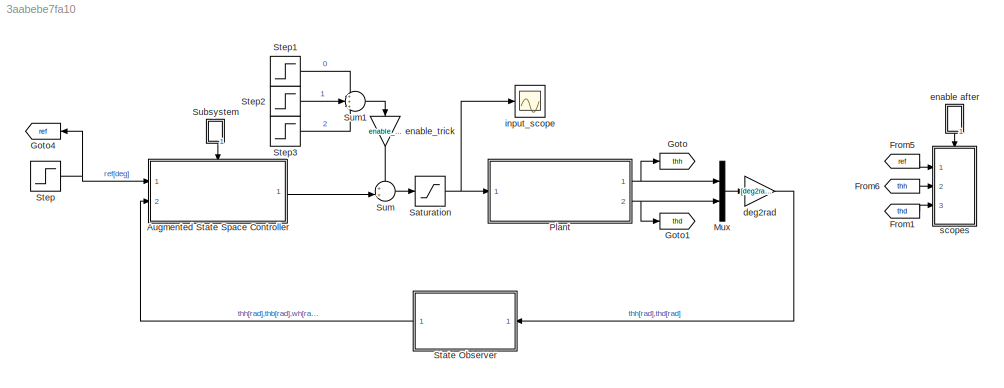
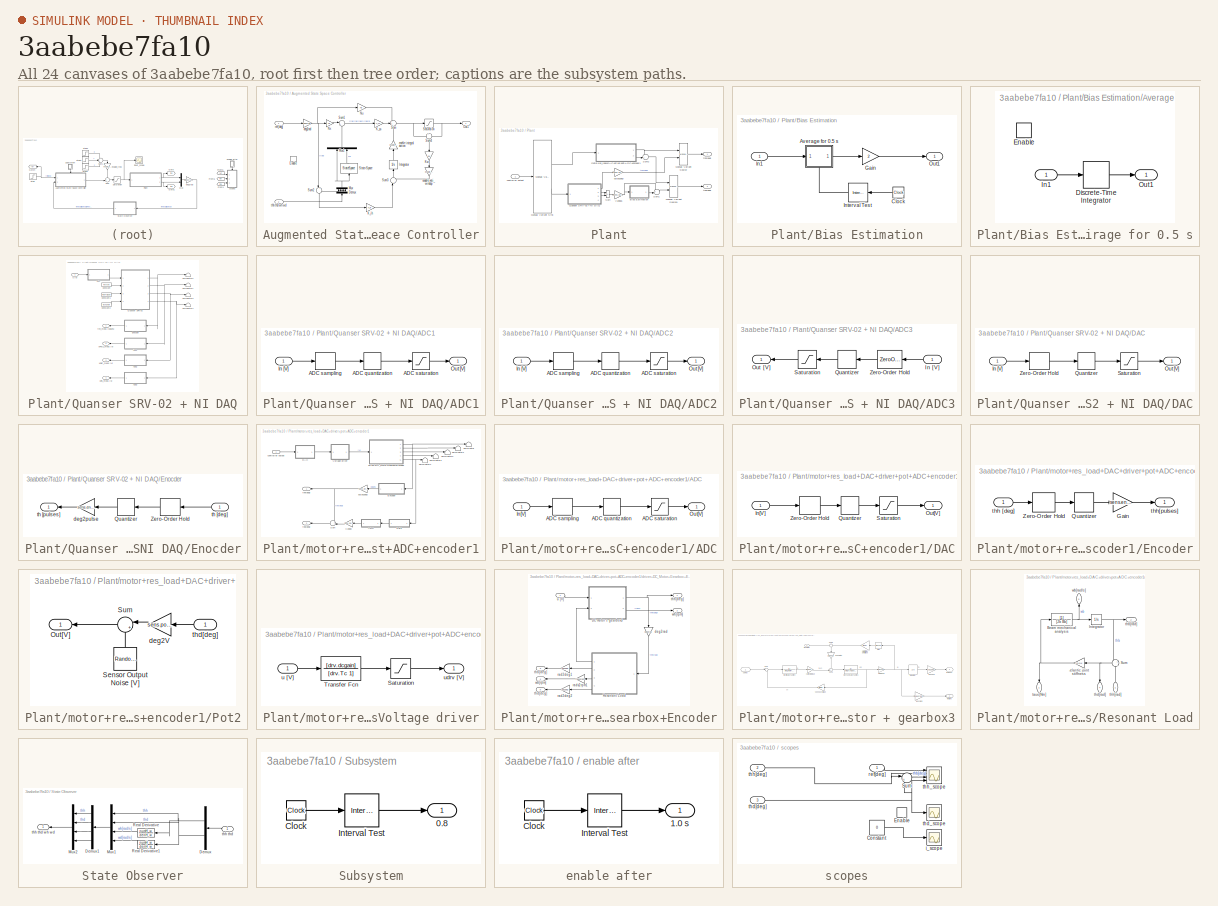
[diagram: thumbnail index - all 24 canvases of the model, root first then tree order]
MODEL slx_3aabebe7fa10
KIND model
CONFIG AbsTol = auto
CONFIG EnableMultiTasking = off
CONFIG FixedStep = auto
CONFIG MaxStep = auto
CONFIG MinStep = auto
CONFIG RelTol = 1e-3
CONFIG SampleTimeConstraint = Unconstrained
CONFIG SolverName = ode45
CONFIG StartTime = 0.0
CONFIG StopTime = 3
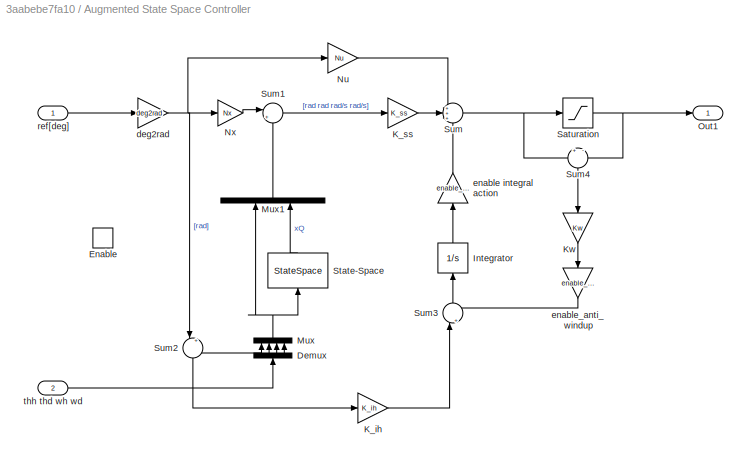
BLOCK [SubSystem] Augmented State Space Controller
  Ports = [2, 1, 1]
  RequestExecContextInheritance = off
BLOCK [Demux] Augmented State Space Controller/Demux
  NameLocation = right
  Ports = [1, 4]
BLOCK [EnablePort] Augmented State Space Controller/Enable
  Ports = []
BLOCK [Integrator] Augmented State Space Controller/Integrator
  NameLocation = right
  Ports = [1, 1]
BLOCK [Gain] Augmented State Space Controller/K_ih
  Gain = K_ih
BLOCK [Gain] Augmented State Space Controller/K_ss
  Gain = K_ss
  Multiplication = Matrix(K*u) (u vector)
BLOCK [Gain] Augmented State Space Controller/Kw
  Gain = Kw
  NameLocation = left
BLOCK [Mux] Augmented State Space Controller/Mux
  DisplayOption = bar
  NameLocation = right
  Ports = [4, 1]
BLOCK [Mux] Augmented State Space Controller/Mux1
  DisplayOption = bar
  Inputs = 2
  NameLocation = right
  Ports = [2, 1]
BLOCK [Gain] Augmented State Space Controller/Nu
  Gain = Nu
  Multiplication = Matrix(K*u) (u vector)
BLOCK [Gain] Augmented State Space Controller/Nx
  Gain = Nx
  Multiplication = Matrix(K*u) (u vector)
BLOCK [Outport] Augmented State Space Controller/Out1
BLOCK [Saturate] Augmented State Space Controller/Saturation
  LowerLimit = -10
  UpperLimit = 10
BLOCK [StateSpace] Augmented State Space Controller/State-Space
  A = Aq
  B = Bq
  C = eye(2,2)
  D = zeros(2,4)
  InitialCondition = 0
  NameLocation = right
  Ports = [1, 1]
BLOCK [Sum] Augmented State Space Controller/Sum
  Inputs = +++
  Ports = [3, 1]
BLOCK [Sum] Augmented State Space Controller/Sum1
  Inputs = |+-
  Ports = [2, 1]
BLOCK [Sum] Augmented State Space Controller/Sum2
  Inputs = |+-
  NameLocation = left
  Ports = [2, 1]
BLOCK [Sum] Augmented State Space Controller/Sum3
  Inputs = |+-
  NameLocation = right
  Ports = [2, 1]
BLOCK [Sum] Augmented State Space Controller/Sum4
  Inputs = +|-
  NameLocation = left
  Ports = [2, 1]
BLOCK [Gain] Augmented State Space Controller/deg2rad
  Gain = deg2rad
BLOCK [Gain] Augmented State Space Controller/enable integral action
  Gain = enable_integral_action
  NameLocation = right
BLOCK [Gain] Augmented State Space Controller/enable_anti_windup
  Gain = enable_anti_windup
  NameLocation = right
BLOCK [Inport] Augmented State Space Controller/ref[deg]
BLOCK [Inport] Augmented State Space Controller/thh thd wh wd
  NameLocation = top
  Port = 2
BLOCK [From] From1
  GotoTag = thd
BLOCK [From] From5
  GotoTag = ref
BLOCK [From] From6
  GotoTag = thh
BLOCK [Goto] Goto
  GotoTag = thh
BLOCK [Goto] Goto1
  GotoTag = thd
BLOCK [Goto] Goto4
  GotoTag = ref
  NameLocation = top
BLOCK [Mux] Mux
  DisplayOption = bar
  Inputs = 2
  Ports = [2, 1]
BLOCK [SubSystem] Plant
  Ports = [1, 2]
  RequestExecContextInheritance = off
BLOCK [SubSystem] Plant/Bias Estimation
  Ports = [1, 1]
  RequestExecContextInheritance = off
BLOCK [SubSystem] Plant/Bias Estimation/Average for 0.5 s
  NameLocation = top
  Ports = [1, 1, 1]
  RequestExecContextInheritance = off
BLOCK [DiscreteIntegrator] Plant/Bias Estimation/Average for 0.5 s/Discrete-Time Integrator
  ICPrevOutput = DiscIntNeverNeededParam
  ICPrevScaledInput = DiscIntNeverNeededParam
  InitialConditionSetting = Auto
  Ports = [1, 1]
  SampleTime = Ts
BLOCK [EnablePort] Plant/Bias Estimation/Average for 0.5 s/Enable
  Ports = []
BLOCK [Inport] Plant/Bias Estimation/Average for 0.5 s/In1
BLOCK [Outport] Plant/Bias Estimation/Average for 0.5 s/Out1
BLOCK [Clock] Plant/Bias Estimation/Clock
  NameLocation = top
BLOCK [Gain] Plant/Bias Estimation/Gain
  Gain = 2
BLOCK [Inport] Plant/Bias Estimation/In1
BLOCK [Reference] Plant/Bias Estimation/Interval Test  REF=simulink/Logic and Bit
Operations/Interval Test
  NameLocation = top
  Ports = [1, 1]
  SourceBlock = simulink/Logic and Bit\nOperations/Interval Test
  SourceProductBaseCode = SL
  SourceType = Interval Test
BLOCK [Outport] Plant/Bias Estimation/Out1
BLOCK [Reference] Plant/Manual Variant Sink  REF=simulink/Signal
Routing/Manual
Variant Sink
  Ports = [1, 2]
  SourceBlock = simulink/Signal\nRouting/Manual\nVariant Sink
  SourceProductBaseCode = SL
  SourceType = ManualVariantSink
BLOCK [Reference] Plant/Manual Variant Source  REF=simulink/Signal
Routing/Manual
Variant Source
  Ports = [2, 1]
  SourceBlock = simulink/Signal\nRouting/Manual\nVariant Source
  SourceProductBaseCode = SL
  SourceType = ManualVariantSource
BLOCK [Reference] Plant/Manual Variant Source1  REF=simulink/Signal
Routing/Manual
Variant Source
  Ports = [2, 1]
  SourceBlock = simulink/Signal\nRouting/Manual\nVariant Source
  SourceProductBaseCode = SL
  SourceType = ManualVariantSource
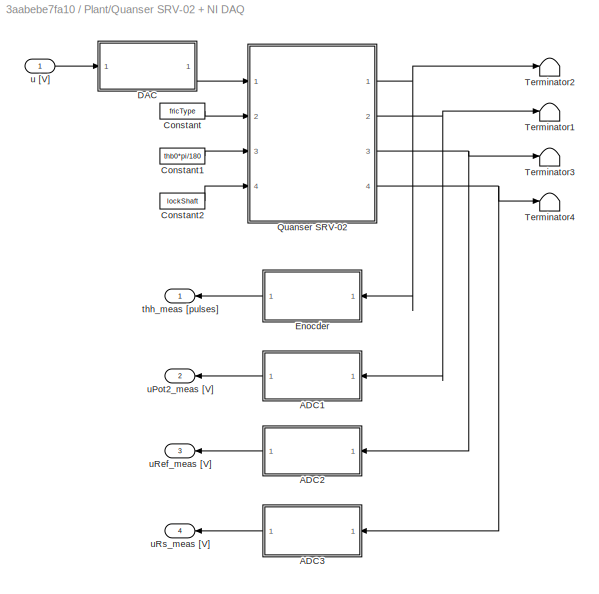
BLOCK [SubSystem] Plant/Quanser SRV-02 + NI DAQ
  Ports = [1, 4]
  RequestExecContextInheritance = off
BLOCK [SubSystem] Plant/Quanser SRV-02 + NI DAQ/ADC1
  Ports = [1, 1]
  RequestExecContextInheritance = off
BLOCK [Quantizer] Plant/Quanser SRV-02 + NI DAQ/ADC1/ADC quantization
  QuantizationInterval = daq.adc.q
BLOCK [ZeroOrderHold] Plant/Quanser SRV-02 + NI DAQ/ADC1/ADC sampling
  SampleTime = Ts
BLOCK [Saturate] Plant/Quanser SRV-02 + NI DAQ/ADC1/ADC saturation
  LowerLimit = -daq.adc.fs
  UpperLimit = daq.adc.fs
BLOCK [Inport] Plant/Quanser SRV-02 + NI DAQ/ADC1/In [V]
BLOCK [Outport] Plant/Quanser SRV-02 + NI DAQ/ADC1/Out [V]
BLOCK [SubSystem] Plant/Quanser SRV-02 + NI DAQ/ADC2
  Ports = [1, 1]
  RequestExecContextInheritance = off
BLOCK [Quantizer] Plant/Quanser SRV-02 + NI DAQ/ADC2/ADC quantization
  QuantizationInterval = daq.adc.q
BLOCK [ZeroOrderHold] Plant/Quanser SRV-02 + NI DAQ/ADC2/ADC sampling
  SampleTime = Ts
BLOCK [Saturate] Plant/Quanser SRV-02 + NI DAQ/ADC2/ADC saturation
  LowerLimit = -daq.adc.fs
  UpperLimit = daq.adc.fs
BLOCK [Inport] Plant/Quanser SRV-02 + NI DAQ/ADC2/In [V]
BLOCK [Outport] Plant/Quanser SRV-02 + NI DAQ/ADC2/Out [V]
BLOCK [SubSystem] Plant/Quanser SRV-02 + NI DAQ/ADC3
  Ports = [1, 1]
  RequestExecContextInheritance = off
BLOCK [Inport] Plant/Quanser SRV-02 + NI DAQ/ADC3/In [V]
BLOCK [Outport] Plant/Quanser SRV-02 + NI DAQ/ADC3/Out [V]
BLOCK [Quantizer] Plant/Quanser SRV-02 + NI DAQ/ADC3/Quantizer
  QuantizationInterval = daq.adc.q
BLOCK [Saturate] Plant/Quanser SRV-02 + NI DAQ/ADC3/Saturation
  LowerLimit = -daq.adc.fs
  UpperLimit = daq.adc.fs
BLOCK [ZeroOrderHold] Plant/Quanser SRV-02 + NI DAQ/ADC3/Zero-Order Hold
  SampleTime = Ts
BLOCK [Constant] Plant/Quanser SRV-02 + NI DAQ/Constant
  Value = fricType
BLOCK [Constant] Plant/Quanser SRV-02 + NI DAQ/Constant1
  SampleTime = Inf
  Value = thb0*pi/180
BLOCK [Constant] Plant/Quanser SRV-02 + NI DAQ/Constant2
  SampleTime = Inf
  Value = lockShaft
BLOCK [SubSystem] Plant/Quanser SRV-02 + NI DAQ/DAC
  Ports = [1, 1]
  RequestExecContextInheritance = off
BLOCK [Inport] Plant/Quanser SRV-02 + NI DAQ/DAC/In [V]
BLOCK [Outport] Plant/Quanser SRV-02 + NI DAQ/DAC/Out [V]
BLOCK [Quantizer] Plant/Quanser SRV-02 + NI DAQ/DAC/Quantizer
  QuantizationInterval = daq.dac.q
BLOCK [Saturate] Plant/Quanser SRV-02 + NI DAQ/DAC/Saturation
  LowerLimit = -daq.dac.fs
  UpperLimit = daq.dac.fs
BLOCK [ZeroOrderHold] Plant/Quanser SRV-02 + NI DAQ/DAC/Zero-Order Hold
  SampleTime = Ts
BLOCK [SubSystem] Plant/Quanser SRV-02 + NI DAQ/Enocder
  Ports = [1, 1]
  RequestExecContextInheritance = off
BLOCK [Quantizer] Plant/Quanser SRV-02 + NI DAQ/Enocder/Quantizer
  QuantizationInterval = sens.enc.pulse2deg
BLOCK [ZeroOrderHold] Plant/Quanser SRV-02 + NI DAQ/Enocder/Zero-Order Hold
  SampleTime = Ts
BLOCK [Gain] Plant/Quanser SRV-02 + NI DAQ/Enocder/deg2pulse
  Gain = sens.enc.deg2pulse
BLOCK [Inport] Plant/Quanser SRV-02 + NI DAQ/Enocder/th [deg]
BLOCK [Outport] Plant/Quanser SRV-02 + NI DAQ/Enocder/th [pulses]
BLOCK [ModelReference] Plant/Quanser SRV-02 + NI DAQ/Quanser SRV-02
  CopyOfModelProtected = on
  ModelNameDialog = SRV02RL_win64.slxp
  ModelReferenceVersion = 1.76
  Ports = [4, 4]
BLOCK [Terminator] Plant/Quanser SRV-02 + NI DAQ/Terminator1
BLOCK [Terminator] Plant/Quanser SRV-02 + NI DAQ/Terminator2
BLOCK [Terminator] Plant/Quanser SRV-02 + NI DAQ/Terminator3
BLOCK [Terminator] Plant/Quanser SRV-02 + NI DAQ/Terminator4
BLOCK [Outport] Plant/Quanser SRV-02 + NI DAQ/thh_meas [pulses]
BLOCK [Inport] Plant/Quanser SRV-02 + NI DAQ/u [V]
BLOCK [Outport] Plant/Quanser SRV-02 + NI DAQ/uPot2_meas [V]
  Port = 2
BLOCK [Outport] Plant/Quanser SRV-02 + NI DAQ/uRef_meas [V]
  Port = 3
BLOCK [Outport] Plant/Quanser SRV-02 + NI DAQ/uRs_meas [V]
  Port = 4
BLOCK [Sum] Plant/Sum
  IconShape = rectangular
  Inputs = +-
  Ports = [2, 1]
BLOCK [Sum] Plant/Sum1
  Inputs = +-|
  Ports = [2, 1]
BLOCK [Sum] Plant/Sum2
  Inputs = -+|
  Ports = [2, 1]
BLOCK [Gain] Plant/V2deg1
  Gain = sens.pot2.V2deg
BLOCK [Inport] Plant/controller output
BLOCK [SubSystem] Plant/motor+res_load+DAC+driver+pot+ADC+encoder1
  Ports = [1, 2]
  RequestExecContextInheritance = off
BLOCK [SubSystem] Plant/motor+res_load+DAC+driver+pot+ADC+encoder1/ADC
  NameLocation = top
  Ports = [1, 1]
  RequestExecContextInheritance = off
BLOCK [Quantizer] Plant/motor+res_load+DAC+driver+pot+ADC+encoder1/ADC/ADC quantization
  QuantizationInterval = daq.adc.q
BLOCK [ZeroOrderHold] Plant/motor+res_load+DAC+driver+pot+ADC+encoder1/ADC/ADC sampling
  SampleTime = Ts
BLOCK [Saturate] Plant/motor+res_load+DAC+driver+pot+ADC+encoder1/ADC/ADC saturation
  LowerLimit = -daq.adc.fs
  UpperLimit = daq.adc.fs
BLOCK [Inport] Plant/motor+res_load+DAC+driver+pot+ADC+encoder1/ADC/In[V]
  NameLocation = top
BLOCK [Outport] Plant/motor+res_load+DAC+driver+pot+ADC+encoder1/ADC/Out[V]
BLOCK [SubSystem] Plant/motor+res_load+DAC+driver+pot+ADC+encoder1/DAC
  Ports = [1, 1]
  RequestExecContextInheritance = off
BLOCK [Inport] Plant/motor+res_load+DAC+driver+pot+ADC+encoder1/DAC/In[V]
BLOCK [Outport] Plant/motor+res_load+DAC+driver+pot+ADC+encoder1/DAC/Out[V]
BLOCK [Quantizer] Plant/motor+res_load+DAC+driver+pot+ADC+encoder1/DAC/Quantizer
  QuantizationInterval = daq.dac.q
BLOCK [Saturate] Plant/motor+res_load+DAC+driver+pot+ADC+encoder1/DAC/Saturation
  LinearizeAsGain = off
  LowerLimit = -daq.dac.fs
  UpperLimit = daq.dac.fs
BLOCK [ZeroOrderHold] Plant/motor+res_load+DAC+driver+pot+ADC+encoder1/DAC/Zero-Order Hold
  SampleTime = Ts
BLOCK [SubSystem] Plant/motor+res_load+DAC+driver+pot+ADC+encoder1/Encoder
  Ports = [1, 1]
  RequestExecContextInheritance = off
BLOCK [Gain] Plant/motor+res_load+DAC+driver+pot+ADC+encoder1/Encoder/Gain
  Gain = sens.enc.ppr/360
BLOCK [Quantizer] Plant/motor+res_load+DAC+driver+pot+ADC+encoder1/Encoder/Quantizer
  QuantizationInterval = sens.enc.pulse2deg
BLOCK [ZeroOrderHold] Plant/motor+res_load+DAC+driver+pot+ADC+encoder1/Encoder/Zero-Order Hold
  SampleTime = Ts
BLOCK [Inport] Plant/motor+res_load+DAC+driver+pot+ADC+encoder1/Encoder/thh [deg] 
BLOCK [Outport] Plant/motor+res_load+DAC+driver+pot+ADC+encoder1/Encoder/thh[pulses]
BLOCK [SubSystem] Plant/motor+res_load+DAC+driver+pot+ADC+encoder1/Pot2
  NameLocation = top
  Ports = [1, 1]
  RequestExecContextInheritance = off
BLOCK [Outport] Plant/motor+res_load+DAC+driver+pot+ADC+encoder1/Pot2/Out[V]
BLOCK [RandomNumber] Plant/motor+res_load+DAC+driver+pot+ADC+encoder1/Pot2/Sensor Output Noise [V]
  NameLocation = right
  SampleTime = Ts
  Variance = sens.pot2.noise.var
BLOCK [Sum] Plant/motor+res_load+DAC+driver+pot+ADC+encoder1/Pot2/Sum
  Inputs = |++
  NameLocation = top
  Ports = [2, 1]
BLOCK [Gain] Plant/motor+res_load+DAC+driver+pot+ADC+encoder1/Pot2/deg2V
  Gain = sens.pot2.deg2V
  NameLocation = top
BLOCK [Inport] Plant/motor+res_load+DAC+driver+pot+ADC+encoder1/Pot2/thd[deg]
  NameLocation = top
BLOCK [Sum] Plant/motor+res_load+DAC+driver+pot+ADC+encoder1/Sum
  Inputs = ++|
  NameLocation = top
  Ports = [2, 1]
BLOCK [Terminator] Plant/motor+res_load+DAC+driver+pot+ADC+encoder1/Terminator
BLOCK [Terminator] Plant/motor+res_load+DAC+driver+pot+ADC+encoder1/Terminator1
BLOCK [Terminator] Plant/motor+res_load+DAC+driver+pot+ADC+encoder1/Terminator2
BLOCK [Terminator] Plant/motor+res_load+DAC+driver+pot+ADC+encoder1/Terminator3
BLOCK [Terminator] Plant/motor+res_load+DAC+driver+pot+ADC+encoder1/Terminator4
BLOCK [Gain] Plant/motor+res_load+DAC+driver+pot+ADC+encoder1/V2deg
  Gain = sens.pot2.V2deg
  NameLocation = top
BLOCK [SubSystem] Plant/motor+res_load+DAC+driver+pot+ADC+encoder1/Voltage driver
  Ports = [1, 1]
  RequestExecContextInheritance = off
BLOCK [Saturate] Plant/motor+res_load+DAC+driver+pot+ADC+encoder1/Voltage driver/Saturation
  LinearizeAsGain = off
  LowerLimit = -drv.outmax
  UpperLimit = drv.outmax
BLOCK [TransferFcn] Plant/motor+res_load+DAC+driver+pot+ADC+encoder1/Voltage driver/Transfer Fcn
  Denominator = [drv.Tc 1]
  Numerator = [drv.dcgain]
BLOCK [Inport] Plant/motor+res_load+DAC+driver+pot+ADC+encoder1/Voltage driver/u [V]
BLOCK [Outport] Plant/motor+res_load+DAC+driver+pot+ADC+encoder1/Voltage driver/udrv [V]
BLOCK [Inport] Plant/motor+res_load+DAC+driver+pot+ADC+encoder1/controller output
BLOCK [SubSystem] Plant/motor+res_load+DAC+driver+pot+ADC+encoder1/driver+DC_Motor+Gearbox+Encoder
  Ports = [1, 5]
  RequestExecContextInheritance = off
BLOCK [SubSystem] Plant/motor+res_load+DAC+driver+pot+ADC+encoder1/driver+DC_Motor+Gearbox+Encoder/DC motor + gearbox3
  Ports = [2, 2]
  RequestExecContextInheritance = off
BLOCK [TransferFcn] Plant/motor+res_load+DAC+driver+pot+ADC+encoder1/driver+DC_Motor+Gearbox+Encoder/DC motor + gearbox3/Electrical dynamics
  Denominator = [mot.L mot.R+sens.curr.Rs]
BLOCK [Integrator] Plant/motor+res_load+DAC+driver+pot+ADC+encoder1/driver+DC_Motor+Gearbox+Encoder/DC motor + gearbox3/Integrator
  Ports = [1, 1]
BLOCK [TransferFcn] Plant/motor+res_load+DAC+driver+pot+ADC+encoder1/driver+DC_Motor+Gearbox+Encoder/DC motor + gearbox3/Mechanical dynamics
  Denominator = [mot.J+Jh/gbox.N^2 Beq]
BLOCK [Signum] Plant/motor+res_load+DAC+driver+pot+ADC+encoder1/driver+DC_Motor+Gearbox+Encoder/DC motor + gearbox3/Sign
  ZeroCross = off
BLOCK [Sum] Plant/motor+res_load+DAC+driver+pot+ADC+encoder1/driver+DC_Motor+Gearbox+Encoder/DC motor + gearbox3/Sum
  Inputs = |+-
  Ports = [2, 1]
BLOCK [Sum] Plant/motor+res_load+DAC+driver+pot+ADC+encoder1/driver+DC_Motor+Gearbox+Encoder/DC motor + gearbox3/Sum1
  Inputs = -+|
  Ports = [2, 1]
BLOCK [Sum] Plant/motor+res_load+DAC+driver+pot+ADC+encoder1/driver+DC_Motor+Gearbox+Encoder/DC motor + gearbox3/Sum2
  Inputs = +|+
  NameLocation = left
  Ports = [2, 1]
BLOCK [Gain] Plant/motor+res_load+DAC+driver+pot+ADC+encoder1/driver+DC_Motor+Gearbox+Encoder/DC motor + gearbox3/current2torque
  Gain = mot.Kt
BLOCK [Gain] Plant/motor+res_load+DAC+driver+pot+ADC+encoder1/driver+DC_Motor+Gearbox+Encoder/DC motor + gearbox3/load2rotor
  Gain = 1/gbox.N
  NameLocation = left
BLOCK [Gain] Plant/motor+res_load+DAC+driver+pot+ADC+encoder1/driver+DC_Motor+Gearbox+Encoder/DC motor + gearbox3/rad2deg
  Gain = rad2deg
BLOCK [Gain] Plant/motor+res_load+DAC+driver+pot+ADC+encoder1/driver+DC_Motor+Gearbox+Encoder/DC motor + gearbox3/rads2rpm
  Gain = rads2rpm
BLOCK [Gain] Plant/motor+res_load+DAC+driver+pot+ADC+encoder1/driver+DC_Motor+Gearbox+Encoder/DC motor + gearbox3/rotor2load
  Gain = 1/gbox.N
BLOCK [Gain] Plant/motor+res_load+DAC+driver+pot+ADC+encoder1/driver+DC_Motor+Gearbox+Encoder/DC motor + gearbox3/speed2voltage
  Gain = mot.Ke
BLOCK [Gain] Plant/motor+res_load+DAC+driver+pot+ADC+encoder1/driver+DC_Motor+Gearbox+Encoder/DC motor + gearbox3/static friction amplitude
  Gain = tausf
BLOCK [Inport] Plant/motor+res_load+DAC+driver+pot+ADC+encoder1/driver+DC_Motor+Gearbox+Encoder/DC motor + gearbox3/taue[Nm]
  Port = 2
BLOCK [Outport] Plant/motor+res_load+DAC+driver+pot+ADC+encoder1/driver+DC_Motor+Gearbox+Encoder/DC motor + gearbox3/thh [deg] 
BLOCK [Inport] Plant/motor+res_load+DAC+driver+pot+ADC+encoder1/driver+DC_Motor+Gearbox+Encoder/DC motor + gearbox3/udrv [V]
BLOCK [Outport] Plant/motor+res_load+DAC+driver+pot+ADC+encoder1/driver+DC_Motor+Gearbox+Encoder/DC motor + gearbox3/wh [rpm]
  Port = 2
BLOCK [SubSystem] Plant/motor+res_load+DAC+driver+pot+ADC+encoder1/driver+DC_Motor+Gearbox+Encoder/Resonant Load
  NameLocation = top
  Ports = [1, 4]
  RequestExecContextInheritance = off
BLOCK [Gain] Plant/motor+res_load+DAC+driver+pot+ADC+encoder1/driver+DC_Motor+Gearbox+Encoder/Resonant Load/-elastic joint stiffness
  Gain = -mld.k
  NameLocation = top
BLOCK [TransferFcn] Plant/motor+res_load+DAC+driver+pot+ADC+encoder1/driver+DC_Motor+Gearbox+Encoder/Resonant Load/Beam mechanical analysis
  Denominator = [Jb Bb]
BLOCK [Integrator] Plant/motor+res_load+DAC+driver+pot+ADC+encoder1/driver+DC_Motor+Gearbox+Encoder/Resonant Load/Integrator
  Ports = [1, 1]
BLOCK [Sum] Plant/motor+res_load+DAC+driver+pot+ADC+encoder1/driver+DC_Motor+Gearbox+Encoder/Resonant Load/Sum
  Inputs = +|-
  NameLocation = top
  Ports = [2, 1]
BLOCK [Outport] Plant/motor+res_load+DAC+driver+pot+ADC+encoder1/driver+DC_Motor+Gearbox+Encoder/Resonant Load/taue[Nm]
  NameLocation = left
BLOCK [Outport] Plant/motor+res_load+DAC+driver+pot+ADC+encoder1/driver+DC_Motor+Gearbox+Encoder/Resonant Load/thb[rad]
  Port = 2
BLOCK [Outport] Plant/motor+res_load+DAC+driver+pot+ADC+encoder1/driver+DC_Motor+Gearbox+Encoder/Resonant Load/thd[rad]
  NameLocation = left
  Port = 4
BLOCK [Inport] Plant/motor+res_load+DAC+driver+pot+ADC+encoder1/driver+DC_Motor+Gearbox+Encoder/Resonant Load/thh[rad]
  NameLocation = right
BLOCK [Outport] Plant/motor+res_load+DAC+driver+pot+ADC+encoder1/driver+DC_Motor+Gearbox+Encoder/Resonant Load/wb[rad//s]
  NameLocation = right
  Port = 3
BLOCK [Gain] Plant/motor+res_load+DAC+driver+pot+ADC+encoder1/driver+DC_Motor+Gearbox+Encoder/deg2rad
  Gain = deg2rad
  NameLocation = left
BLOCK [Gain] Plant/motor+res_load+DAC+driver+pot+ADC+encoder1/driver+DC_Motor+Gearbox+Encoder/rad2deg1
  Gain = rad2deg
  NameLocation = top
BLOCK [Gain] Plant/motor+res_load+DAC+driver+pot+ADC+encoder1/driver+DC_Motor+Gearbox+Encoder/rad2deg2
  Gain = rad2deg
  NameLocation = top
BLOCK [Gain] Plant/motor+res_load+DAC+driver+pot+ADC+encoder1/driver+DC_Motor+Gearbox+Encoder/rads2rpm1
  Gain = rads2rpm
  NameLocation = top
BLOCK [Outport] Plant/motor+res_load+DAC+driver+pot+ADC+encoder1/driver+DC_Motor+Gearbox+Encoder/thb[deg]
  NameLocation = top
  Port = 3
BLOCK [Outport] Plant/motor+res_load+DAC+driver+pot+ADC+encoder1/driver+DC_Motor+Gearbox+Encoder/thd[deg]
  NameLocation = top
  Port = 5
BLOCK [Outport] Plant/motor+res_load+DAC+driver+pot+ADC+encoder1/driver+DC_Motor+Gearbox+Encoder/thh[deg]
BLOCK [Inport] Plant/motor+res_load+DAC+driver+pot+ADC+encoder1/driver+DC_Motor+Gearbox+Encoder/u [V]
BLOCK [Outport] Plant/motor+res_load+DAC+driver+pot+ADC+encoder1/driver+DC_Motor+Gearbox+Encoder/wb[rpm]
  NameLocation = top
  Port = 4
BLOCK [Outport] Plant/motor+res_load+DAC+driver+pot+ADC+encoder1/driver+DC_Motor+Gearbox+Encoder/wh[rpm]
  Port = 2
BLOCK [Gain] Plant/motor+res_load+DAC+driver+pot+ADC+encoder1/pulse2deg
  Gain = sens.enc.pulse2deg
  NameLocation = top
BLOCK [Outport] Plant/motor+res_load+DAC+driver+pot+ADC+encoder1/thb[deg]
  NameLocation = top
  Port = 2
BLOCK [Outport] Plant/motor+res_load+DAC+driver+pot+ADC+encoder1/thh[deg]
  NameLocation = top
BLOCK [Gain] Plant/pulse2deg
  Gain = sens.enc.pulse2deg
BLOCK [Outport] Plant/thd[deg]
  Port = 2
BLOCK [Outport] Plant/thh[deg]
BLOCK [Saturate] Saturation
  LinearizeAsGain = off
  LowerLimit = -10
  UpperLimit = 10
BLOCK [SubSystem] State Observer
  NameLocation = top
  Ports = [1, 1]
  RequestExecContextInheritance = off
BLOCK [Demux] State Observer/Demux
  NameLocation = top
  Outputs = 2
  Ports = [1, 2]
BLOCK [Demux] State Observer/Demux1
  NameLocation = top
  Ports = [1, 4]
BLOCK [Mux] State Observer/Mux1
  DisplayOption = bar
  NameLocation = top
  Ports = [4, 1]
BLOCK [Mux] State Observer/Mux2
  DisplayOption = bar
  NameLocation = top
  Ports = [4, 1]
BLOCK [TransferFcn] State Observer/Real Derivative
  Denominator = denH_w
  NameLocation = top
  Numerator = numH_w
BLOCK [TransferFcn] State Observer/Real Derivative1
  Denominator = denH_w
  NameLocation = top
  Numerator = numH_w
BLOCK [Inport] State Observer/thh thd
  NameLocation = top
BLOCK [Outport] State Observer/thh thd wh wd
BLOCK [Step] Step
  After = step_height
  SampleTime = 0
  Time = step_start_time
BLOCK [Step] Step1
  After = 30
  SampleTime = 0
  Time = t0
BLOCK [Step] Step2
  After = -60
  SampleTime = 0
  Time = t1
BLOCK [Step] Step3
  After = 30
  SampleTime = 0
  Time = t2
BLOCK [SubSystem] Subsystem
  NameLocation = left
  Ports = [0, 1]
  RequestExecContextInheritance = off
BLOCK [Outport] Subsystem/0.8
BLOCK [Clock] Subsystem/Clock
BLOCK [Reference] Subsystem/Interval Test  REF=simulink/Logic and Bit
Operations/Interval Test
  Ports = [1, 1]
  SourceBlock = simulink/Logic and Bit\nOperations/Interval Test
  SourceProductBaseCode = SL
  SourceType = Interval Test
BLOCK [Sum] Sum
  Inputs = ++|
  Ports = [2, 1]
BLOCK [Sum] Sum1
  Inputs = +++
  Ports = [3, 1]
BLOCK [Gain] deg2rad
  Gain = [deg2rad 0; 0 deg2rad]
  Multiplication = Matrix(K*u) (u vector)
BLOCK [SubSystem] enable after
  NameLocation = left
  Ports = [0, 1]
  RequestExecContextInheritance = off
BLOCK [Outport] enable after/1.0 s
BLOCK [Clock] enable after/Clock
BLOCK [Reference] enable after/Interval Test  REF=simulink/Logic and Bit
Operations/Interval Test
  Ports = [1, 1]
  SourceBlock = simulink/Logic and Bit\nOperations/Interval Test
  SourceProductBaseCode = SL
  SourceType = Interval Test
BLOCK [Gain] enable_trick
  Gain = enable_trick
  NameLocation = right
BLOCK [Scope] input_scope
  Floating = off
  NumInputPorts = 1
  Ports = [1]
  ScopeSpecificationString = Simulink.scopes.TimeScopeBlockCfg('CurrentConfiguration', extmgr.ConfigurationSet(extmgr.Configuration('Core','General UI',true),extmgr.Configuration('Core','Source UI',true),extmgr.Configuration('Sources','WiredSimulink',true,'DataLoggingVariableName','ScopeData1','SampleTime','Ts'),extmgr.Configuration('Visuals','Time Domain',true,'SerializedDisplays',{struct('MinYLimReal','-12.81175','MaxYLimRe...<+1511ch>
BLOCK [SubSystem] scopes
  Ports = [3, 0, 1]
  RequestExecContextInheritance = off
BLOCK [Constant] scopes/Constant
  Value = 0
BLOCK [EnablePort] scopes/Enable
  Ports = []
BLOCK [Sum] scopes/Sum
  Inputs = |++
  Ports = [2, 1]
BLOCK [Scope] scopes/i_scope
  Floating = off
  NumInputPorts = 1
  Ports = [1]
  ScopeSpecificationString = Simulink.scopes.TimeScopeBlockCfg('CurrentConfiguration', extmgr.ConfigurationSet(extmgr.Configuration('Core','General UI',true),extmgr.Configuration('Core','Source UI',true),extmgr.Configuration('Sources','WiredSimulink',true,'DataLoggingVariableName','i_scope1','DataLogging',true,'DataLoggingSaveFormat','StructureWithTime','SampleTime','Ts'),extmgr.Configuration('Visuals','Time Domain',true,'Ser...<+1511ch>
BLOCK [Inport] scopes/ref[deg]
BLOCK [Inport] scopes/thd[deg]
  Port = 3
BLOCK [Scope] scopes/thd_scope
  Floating = off
  NumInputPorts = 1
  Ports = [1]
  ScopeSpecificationString = Simulink.scopes.TimeScopeBlockCfg('CurrentConfiguration', extmgr.ConfigurationSet(extmgr.Configuration('Core','General UI',true),extmgr.Configuration('Core','Source UI',true),extmgr.Configuration('Sources','WiredSimulink',true,'DataLoggingVariableName','thd_scope1','DataLogging',true,'DataLoggingSaveFormat','StructureWithTime','SampleTime','Ts'),extmgr.Configuration('Visuals','Time Domain',true,'S...<+1502ch>
BLOCK [Inport] scopes/thh[deg]
  Port = 2
BLOCK [Scope] scopes/thh_scope
  Floating = off
  NumInputPorts = 4
  Ports = [4]
  ScopeSpecificationString = Simulink.scopes.TimeScopeBlockCfg('CurrentConfiguration', extmgr.ConfigurationSet(extmgr.Configuration('Core','General UI',true),extmgr.Configuration('Core','Source UI',true),extmgr.Configuration('Sources','WiredSimulink',true,'DataLoggingVariableName','thh_scope1','DataLogging',true,'DataLoggingSaveFormat','StructureWithTime','SampleTime','Ts'),extmgr.Configuration('Visuals','Time Domain',true,'S...<+1578ch>
ANNOTATION Plant/motor+res_load+DAC+driver+pot+ADC+encoder1/driver+DC_Motor+Gearbox+Encoder/DC motor + gearbox3: ia
ANNOTATION Plant/motor+res_load+DAC+driver+pot+ADC+encoder1/driver+DC_Motor+Gearbox+Encoder/DC motor + gearbox3: taum
ANNOTATION Plant/motor+res_load+DAC+driver+pot+ADC+encoder1/driver+DC_Motor+Gearbox+Encoder/DC motor + gearbox3: thl
ANNOTATION Plant/motor+res_load+DAC+driver+pot+ADC+encoder1/driver+DC_Motor+Gearbox+Encoder/DC motor + gearbox3: ue
ANNOTATION Plant/motor+res_load+DAC+driver+pot+ADC+encoder1/driver+DC_Motor+Gearbox+Encoder/DC motor + gearbox3: wl
ANNOTATION Plant/motor+res_load+DAC+driver+pot+ADC+encoder1/driver+DC_Motor+Gearbox+Encoder/DC motor + gearbox3: wm
NET Augmented State Space Controller/Demux:1 -> Augmented State Space Controller/Mux:1, Augmented State Space Controller/Sum2:2
LINE Augmented State Space Controller/Demux:2 -> Augmented State Space Controller/Mux:2
LINE Augmented State Space Controller/Demux:3 -> Augmented State Space Controller/Mux:3
LINE Augmented State Space Controller/Demux:4 -> Augmented State Space Controller/Mux:4
LINE Augmented State Space Controller/Integrator:1 -> Augmented State Space Controller/enable integral action:1
LINE Augmented State Space Controller/K_ih:1 -> Augmented State Space Controller/Sum3:1
LINE Augmented State Space Controller/K_ss:1 -> Augmented State Space Controller/Sum:2
LINE Augmented State Space Controller/Kw:1 -> Augmented State Space Controller/enable_anti_windup:1
LINE Augmented State Space Controller/Mux1:1 -> Augmented State Space Controller/Sum1:2
NET Augmented State Space Controller/Mux:1 -> Augmented State Space Controller/Mux1:1, Augmented State Space Controller/State-Space:1
LINE Augmented State Space Controller/Nu:1 -> Augmented State Space Controller/Sum:1
LINE Augmented State Space Controller/Nx:1 -> Augmented State Space Controller/Sum1:1
NET Augmented State Space Controller/Saturation:1 -> Augmented State Space Controller/Out1:1, Augmented State Space Controller/Sum4:2
LINE Augmented State Space Controller/State-Space:1 -> Augmented State Space Controller/Mux1:2
LINE Augmented State Space Controller/Sum1:1 -> Augmented State Space Controller/K_ss:1
LINE Augmented State Space Controller/Sum2:1 -> Augmented State Space Controller/K_ih:1
LINE Augmented State Space Controller/Sum3:1 -> Augmented State Space Controller/Integrator:1
LINE Augmented State Space Controller/Sum4:1 -> Augmented State Space Controller/Kw:1
NET Augmented State Space Controller/Sum:1 -> Augmented State Space Controller/Saturation:1, Augmented State Space Controller/Sum4:1
NET Augmented State Space Controller/deg2rad:1 -> Augmented State Space Controller/Nu:1, Augmented State Space Controller/Nx:1, Augmented State Space Controller/Sum2:1
LINE Augmented State Space Controller/enable integral action:1 -> Augmented State Space Controller/Sum:3
LINE Augmented State Space Controller/enable_anti_windup:1 -> Augmented State Space Controller/Sum3:2
LINE Augmented State Space Controller/ref[deg]:1 -> Augmented State Space Controller/deg2rad:1
LINE Augmented State Space Controller/thh thd wh wd:1 -> Augmented State Space Controller/Demux:1
LINE Augmented State Space Controller:1 -> Sum:2
LINE From1:1 -> scopes:3
LINE From5:1 -> scopes:1
LINE From6:1 -> scopes:2
LINE Mux:1 -> deg2rad:1
LINE Plant/Bias Estimation/Average for 0.5 s/Discrete-Time Integrator:1 -> Plant/Bias Estimation/Average for 0.5 s/Out1:1
LINE Plant/Bias Estimation/Average for 0.5 s/In1:1 -> Plant/Bias Estimation/Average for 0.5 s/Discrete-Time Integrator:1
LINE Plant/Bias Estimation/Average for 0.5 s:1 -> Plant/Bias Estimation/Gain:1
LINE Plant/Bias Estimation/Clock:1 -> Plant/Bias Estimation/Interval Test:1
LINE Plant/Bias Estimation/Gain:1 -> Plant/Bias Estimation/Out1:1
LINE Plant/Bias Estimation/In1:1 -> Plant/Bias Estimation/Average for 0.5 s:1
LINE Plant/Bias Estimation/Interval Test:1 -> Plant/Bias Estimation/Average for 0.5 s:enable
LINE Plant/Bias Estimation:1 -> Plant/Sum1:2
LINE Plant/Manual Variant Sink:1 -> Plant/motor+res_load+DAC+driver+pot+ADC+encoder1:1
LINE Plant/Manual Variant Sink:2 -> Plant/Quanser SRV-02 + NI DAQ:1
LINE Plant/Manual Variant Source1:1 -> Plant/thd[deg]:1
LINE Plant/Manual Variant Source:1 -> Plant/thh[deg]:1
LINE Plant/Quanser SRV-02 + NI DAQ/ADC1/ADC quantization:1 -> Plant/Quanser SRV-02 + NI DAQ/ADC1/ADC saturation:1
LINE Plant/Quanser SRV-02 + NI DAQ/ADC1/ADC sampling:1 -> Plant/Quanser SRV-02 + NI DAQ/ADC1/ADC quantization:1
LINE Plant/Quanser SRV-02 + NI DAQ/ADC1/ADC saturation:1 -> Plant/Quanser SRV-02 + NI DAQ/ADC1/Out [V]:1
LINE Plant/Quanser SRV-02 + NI DAQ/ADC1/In [V]:1 -> Plant/Quanser SRV-02 + NI DAQ/ADC1/ADC sampling:1
LINE Plant/Quanser SRV-02 + NI DAQ/ADC1:1 -> Plant/Quanser SRV-02 + NI DAQ/uPot2_meas [V]:1
LINE Plant/Quanser SRV-02 + NI DAQ/ADC2/ADC quantization:1 -> Plant/Quanser SRV-02 + NI DAQ/ADC2/ADC saturation:1
LINE Plant/Quanser SRV-02 + NI DAQ/ADC2/ADC sampling:1 -> Plant/Quanser SRV-02 + NI DAQ/ADC2/ADC quantization:1
LINE Plant/Quanser SRV-02 + NI DAQ/ADC2/ADC saturation:1 -> Plant/Quanser SRV-02 + NI DAQ/ADC2/Out [V]:1
LINE Plant/Quanser SRV-02 + NI DAQ/ADC2/In [V]:1 -> Plant/Quanser SRV-02 + NI DAQ/ADC2/ADC sampling:1
LINE Plant/Quanser SRV-02 + NI DAQ/ADC2:1 -> Plant/Quanser SRV-02 + NI DAQ/uRef_meas [V]:1
LINE Plant/Quanser SRV-02 + NI DAQ/ADC3/In [V]:1 -> Plant/Quanser SRV-02 + NI DAQ/ADC3/Zero-Order Hold:1
LINE Plant/Quanser SRV-02 + NI DAQ/ADC3/Quantizer:1 -> Plant/Quanser SRV-02 + NI DAQ/ADC3/Saturation:1
LINE Plant/Quanser SRV-02 + NI DAQ/ADC3/Saturation:1 -> Plant/Quanser SRV-02 + NI DAQ/ADC3/Out [V]:1
LINE Plant/Quanser SRV-02 + NI DAQ/ADC3/Zero-Order Hold:1 -> Plant/Quanser SRV-02 + NI DAQ/ADC3/Quantizer:1
LINE Plant/Quanser SRV-02 + NI DAQ/ADC3:1 -> Plant/Quanser SRV-02 + NI DAQ/uRs_meas [V]:1
LINE Plant/Quanser SRV-02 + NI DAQ/Constant1:1 -> Plant/Quanser SRV-02 + NI DAQ/Quanser SRV-02:3
LINE Plant/Quanser SRV-02 + NI DAQ/Constant2:1 -> Plant/Quanser SRV-02 + NI DAQ/Quanser SRV-02:4
LINE Plant/Quanser SRV-02 + NI DAQ/Constant:1 -> Plant/Quanser SRV-02 + NI DAQ/Quanser SRV-02:2
LINE Plant/Quanser SRV-02 + NI DAQ/DAC/In [V]:1 -> Plant/Quanser SRV-02 + NI DAQ/DAC/Zero-Order Hold:1
LINE Plant/Quanser SRV-02 + NI DAQ/DAC/Quantizer:1 -> Plant/Quanser SRV-02 + NI DAQ/DAC/Saturation:1
LINE Plant/Quanser SRV-02 + NI DAQ/DAC/Saturation:1 -> Plant/Quanser SRV-02 + NI DAQ/DAC/Out [V]:1
LINE Plant/Quanser SRV-02 + NI DAQ/DAC/Zero-Order Hold:1 -> Plant/Quanser SRV-02 + NI DAQ/DAC/Quantizer:1
LINE Plant/Quanser SRV-02 + NI DAQ/DAC:1 -> Plant/Quanser SRV-02 + NI DAQ/Quanser SRV-02:1
LINE Plant/Quanser SRV-02 + NI DAQ/Enocder/Quantizer:1 -> Plant/Quanser SRV-02 + NI DAQ/Enocder/deg2pulse:1
LINE Plant/Quanser SRV-02 + NI DAQ/Enocder/Zero-Order Hold:1 -> Plant/Quanser SRV-02 + NI DAQ/Enocder/Quantizer:1
LINE Plant/Quanser SRV-02 + NI DAQ/Enocder/deg2pulse:1 -> Plant/Quanser SRV-02 + NI DAQ/Enocder/th [pulses]:1
LINE Plant/Quanser SRV-02 + NI DAQ/Enocder/th [deg]:1 -> Plant/Quanser SRV-02 + NI DAQ/Enocder/Zero-Order Hold:1
LINE Plant/Quanser SRV-02 + NI DAQ/Enocder:1 -> Plant/Quanser SRV-02 + NI DAQ/thh_meas [pulses]:1
NET Plant/Quanser SRV-02 + NI DAQ/Quanser SRV-02:1 -> Plant/Quanser SRV-02 + NI DAQ/Enocder:1, Plant/Quanser SRV-02 + NI DAQ/Terminator2:1
NET Plant/Quanser SRV-02 + NI DAQ/Quanser SRV-02:2 -> Plant/Quanser SRV-02 + NI DAQ/ADC1:1, Plant/Quanser SRV-02 + NI DAQ/Terminator1:1
NET Plant/Quanser SRV-02 + NI DAQ/Quanser SRV-02:3 -> Plant/Quanser SRV-02 + NI DAQ/ADC2:1, Plant/Quanser SRV-02 + NI DAQ/Terminator3:1
NET Plant/Quanser SRV-02 + NI DAQ/Quanser SRV-02:4 -> Plant/Quanser SRV-02 + NI DAQ/ADC3:1, Plant/Quanser SRV-02 + NI DAQ/Terminator4:1
LINE Plant/Quanser SRV-02 + NI DAQ/u [V]:1 -> Plant/Quanser SRV-02 + NI DAQ/DAC:1
LINE Plant/Quanser SRV-02 + NI DAQ:1 -> Plant/pulse2deg:1
LINE Plant/Quanser SRV-02 + NI DAQ:2 -> Plant/Sum:1
LINE Plant/Quanser SRV-02 + NI DAQ:3 -> Plant/Sum:2
LINE Plant/Sum1:1 -> Plant/Manual Variant Source1:2
LINE Plant/Sum2:1 -> Plant/Manual Variant Source1:1
LINE Plant/Sum:1 -> Plant/V2deg1:1
NET Plant/V2deg1:1 -> Plant/Bias Estimation:1, Plant/Sum1:1
LINE Plant/controller output:1 -> Plant/Manual Variant Sink:1
LINE Plant/motor+res_load+DAC+driver+pot+ADC+encoder1/ADC/ADC quantization:1 -> Plant/motor+res_load+DAC+driver+pot+ADC+encoder1/ADC/ADC saturation:1
LINE Plant/motor+res_load+DAC+driver+pot+ADC+encoder1/ADC/ADC sampling:1 -> Plant/motor+res_load+DAC+driver+pot+ADC+encoder1/ADC/ADC quantization:1
LINE Plant/motor+res_load+DAC+driver+pot+ADC+encoder1/ADC/ADC saturation:1 -> Plant/motor+res_load+DAC+driver+pot+ADC+encoder1/ADC/Out[V]:1
LINE Plant/motor+res_load+DAC+driver+pot+ADC+encoder1/ADC/In[V]:1 -> Plant/motor+res_load+DAC+driver+pot+ADC+encoder1/ADC/ADC sampling:1
LINE Plant/motor+res_load+DAC+driver+pot+ADC+encoder1/ADC:1 -> Plant/motor+res_load+DAC+driver+pot+ADC+encoder1/V2deg:1
LINE Plant/motor+res_load+DAC+driver+pot+ADC+encoder1/DAC/In[V]:1 -> Plant/motor+res_load+DAC+driver+pot+ADC+encoder1/DAC/Zero-Order Hold:1
LINE Plant/motor+res_load+DAC+driver+pot+ADC+encoder1/DAC/Quantizer:1 -> Plant/motor+res_load+DAC+driver+pot+ADC+encoder1/DAC/Saturation:1
LINE Plant/motor+res_load+DAC+driver+pot+ADC+encoder1/DAC/Saturation:1 -> Plant/motor+res_load+DAC+driver+pot+ADC+encoder1/DAC/Out[V]:1
LINE Plant/motor+res_load+DAC+driver+pot+ADC+encoder1/DAC/Zero-Order Hold:1 -> Plant/motor+res_load+DAC+driver+pot+ADC+encoder1/DAC/Quantizer:1
LINE Plant/motor+res_load+DAC+driver+pot+ADC+encoder1/DAC:1 -> Plant/motor+res_load+DAC+driver+pot+ADC+encoder1/Voltage driver:1
LINE Plant/motor+res_load+DAC+driver+pot+ADC+encoder1/Encoder/Gain:1 -> Plant/motor+res_load+DAC+driver+pot+ADC+encoder1/Encoder/thh[pulses]:1
LINE Plant/motor+res_load+DAC+driver+pot+ADC+encoder1/Encoder/Quantizer:1 -> Plant/motor+res_load+DAC+driver+pot+ADC+encoder1/Encoder/Gain:1
LINE Plant/motor+res_load+DAC+driver+pot+ADC+encoder1/Encoder/Zero-Order Hold:1 -> Plant/motor+res_load+DAC+driver+pot+ADC+encoder1/Encoder/Quantizer:1
LINE Plant/motor+res_load+DAC+driver+pot+ADC+encoder1/Encoder/thh [deg] :1 -> Plant/motor+res_load+DAC+driver+pot+ADC+encoder1/Encoder/Zero-Order Hold:1
LINE Plant/motor+res_load+DAC+driver+pot+ADC+encoder1/Encoder:1 -> Plant/motor+res_load+DAC+driver+pot+ADC+encoder1/pulse2deg:1
LINE Plant/motor+res_load+DAC+driver+pot+ADC+encoder1/Pot2/Sensor Output Noise [V]:1 -> Plant/motor+res_load+DAC+driver+pot+ADC+encoder1/Pot2/Sum:2
LINE Plant/motor+res_load+DAC+driver+pot+ADC+encoder1/Pot2/Sum:1 -> Plant/motor+res_load+DAC+driver+pot+ADC+encoder1/Pot2/Out[V]:1
LINE Plant/motor+res_load+DAC+driver+pot+ADC+encoder1/Pot2/deg2V:1 -> Plant/motor+res_load+DAC+driver+pot+ADC+encoder1/Pot2/Sum:1
LINE Plant/motor+res_load+DAC+driver+pot+ADC+encoder1/Pot2/thd[deg]:1 -> Plant/motor+res_load+DAC+driver+pot+ADC+encoder1/Pot2/deg2V:1
LINE Plant/motor+res_load+DAC+driver+pot+ADC+encoder1/Pot2:1 -> Plant/motor+res_load+DAC+driver+pot+ADC+encoder1/ADC:1
LINE Plant/motor+res_load+DAC+driver+pot+ADC+encoder1/Sum:1 -> Plant/motor+res_load+DAC+driver+pot+ADC+encoder1/thb[deg]:1
LINE Plant/motor+res_load+DAC+driver+pot+ADC+encoder1/V2deg:1 -> Plant/motor+res_load+DAC+driver+pot+ADC+encoder1/Sum:2
LINE Plant/motor+res_load+DAC+driver+pot+ADC+encoder1/Voltage driver/Saturation:1 -> Plant/motor+res_load+DAC+driver+pot+ADC+encoder1/Voltage driver/udrv [V]:1
LINE Plant/motor+res_load+DAC+driver+pot+ADC+encoder1/Voltage driver/Transfer Fcn:1 -> Plant/motor+res_load+DAC+driver+pot+ADC+encoder1/Voltage driver/Saturation:1
LINE Plant/motor+res_load+DAC+driver+pot+ADC+encoder1/Voltage driver/u [V]:1 -> Plant/motor+res_load+DAC+driver+pot+ADC+encoder1/Voltage driver/Transfer Fcn:1
LINE Plant/motor+res_load+DAC+driver+pot+ADC+encoder1/Voltage driver:1 -> Plant/motor+res_load+DAC+driver+pot+ADC+encoder1/driver+DC_Motor+Gearbox+Encoder:1
LINE Plant/motor+res_load+DAC+driver+pot+ADC+encoder1/controller output:1 -> Plant/motor+res_load+DAC+driver+pot+ADC+encoder1/DAC:1
LINE Plant/motor+res_load+DAC+driver+pot+ADC+encoder1/driver+DC_Motor+Gearbox+Encoder/DC motor + gearbox3/Electrical dynamics:1 -> Plant/motor+res_load+DAC+driver+pot+ADC+encoder1/driver+DC_Motor+Gearbox+Encoder/DC motor + gearbox3/current2torque:1
LINE Plant/motor+res_load+DAC+driver+pot+ADC+encoder1/driver+DC_Motor+Gearbox+Encoder/DC motor + gearbox3/Integrator:1 -> Plant/motor+res_load+DAC+driver+pot+ADC+encoder1/driver+DC_Motor+Gearbox+Encoder/DC motor + gearbox3/rad2deg:1
NET Plant/motor+res_load+DAC+driver+pot+ADC+encoder1/driver+DC_Motor+Gearbox+Encoder/DC motor + gearbox3/Mechanical dynamics:1 -> Plant/motor+res_load+DAC+driver+pot+ADC+encoder1/driver+DC_Motor+Gearbox+Encoder/DC motor + gearbox3/rotor2load:1, Plant/motor+res_load+DAC+driver+pot+ADC+encoder1/driver+DC_Motor+Gearbox+Encoder/DC motor + gearbox3/speed2voltage:1
LINE Plant/motor+res_load+DAC+driver+pot+ADC+encoder1/driver+DC_Motor+Gearbox+Encoder/DC motor + gearbox3/Sign:1 -> Plant/motor+res_load+DAC+driver+pot+ADC+encoder1/driver+DC_Motor+Gearbox+Encoder/DC motor + gearbox3/static friction amplitude:1
LINE Plant/motor+res_load+DAC+driver+pot+ADC+encoder1/driver+DC_Motor+Gearbox+Encoder/DC motor + gearbox3/Sum1:1 -> Plant/motor+res_load+DAC+driver+pot+ADC+encoder1/driver+DC_Motor+Gearbox+Encoder/DC motor + gearbox3/Mechanical dynamics:1
LINE Plant/motor+res_load+DAC+driver+pot+ADC+encoder1/driver+DC_Motor+Gearbox+Encoder/DC motor + gearbox3/Sum2:1 -> Plant/motor+res_load+DAC+driver+pot+ADC+encoder1/driver+DC_Motor+Gearbox+Encoder/DC motor + gearbox3/load2rotor:1
LINE Plant/motor+res_load+DAC+driver+pot+ADC+encoder1/driver+DC_Motor+Gearbox+Encoder/DC motor + gearbox3/Sum:1 -> Plant/motor+res_load+DAC+driver+pot+ADC+encoder1/driver+DC_Motor+Gearbox+Encoder/DC motor + gearbox3/Electrical dynamics:1
LINE Plant/motor+res_load+DAC+driver+pot+ADC+encoder1/driver+DC_Motor+Gearbox+Encoder/DC motor + gearbox3/current2torque:1 -> Plant/motor+res_load+DAC+driver+pot+ADC+encoder1/driver+DC_Motor+Gearbox+Encoder/DC motor + gearbox3/Sum1:2
LINE Plant/motor+res_load+DAC+driver+pot+ADC+encoder1/driver+DC_Motor+Gearbox+Encoder/DC motor + gearbox3/load2rotor:1 -> Plant/motor+res_load+DAC+driver+pot+ADC+encoder1/driver+DC_Motor+Gearbox+Encoder/DC motor + gearbox3/Sum1:1
LINE Plant/motor+res_load+DAC+driver+pot+ADC+encoder1/driver+DC_Motor+Gearbox+Encoder/DC motor + gearbox3/rad2deg:1 -> Plant/motor+res_load+DAC+driver+pot+ADC+encoder1/driver+DC_Motor+Gearbox+Encoder/DC motor + gearbox3/thh [deg] :1
LINE Plant/motor+res_load+DAC+driver+pot+ADC+encoder1/driver+DC_Motor+Gearbox+Encoder/DC motor + gearbox3/rads2rpm:1 -> Plant/motor+res_load+DAC+driver+pot+ADC+encoder1/driver+DC_Motor+Gearbox+Encoder/DC motor + gearbox3/wh [rpm]:1
NET Plant/motor+res_load+DAC+driver+pot+ADC+encoder1/driver+DC_Motor+Gearbox+Encoder/DC motor + gearbox3/rotor2load:1 -> Plant/motor+res_load+DAC+driver+pot+ADC+encoder1/driver+DC_Motor+Gearbox+Encoder/DC motor + gearbox3/Integrator:1, Plant/motor+res_load+DAC+driver+pot+ADC+encoder1/driver+DC_Motor+Gearbox+Encoder/DC motor + gearbox3/Sign:1, Plant/motor+res_load+DAC+driver+pot+ADC+encoder1/driver+DC_Motor+Gearbox+Encoder/DC motor + gearbox3/rads2rpm:1
LINE Plant/motor+res_load+DAC+driver+pot+ADC+encoder1/driver+DC_Motor+Gearbox+Encoder/DC motor + gearbox3/speed2voltage:1 -> Plant/motor+res_load+DAC+driver+pot+ADC+encoder1/driver+DC_Motor+Gearbox+Encoder/DC motor + gearbox3/Sum:2
LINE Plant/motor+res_load+DAC+driver+pot+ADC+encoder1/driver+DC_Motor+Gearbox+Encoder/DC motor + gearbox3/static friction amplitude:1 -> Plant/motor+res_load+DAC+driver+pot+ADC+encoder1/driver+DC_Motor+Gearbox+Encoder/DC motor + gearbox3/Sum2:2
LINE Plant/motor+res_load+DAC+driver+pot+ADC+encoder1/driver+DC_Motor+Gearbox+Encoder/DC motor + gearbox3/taue[Nm]:1 -> Plant/motor+res_load+DAC+driver+pot+ADC+encoder1/driver+DC_Motor+Gearbox+Encoder/DC motor + gearbox3/Sum2:1
LINE Plant/motor+res_load+DAC+driver+pot+ADC+encoder1/driver+DC_Motor+Gearbox+Encoder/DC motor + gearbox3/udrv [V]:1 -> Plant/motor+res_load+DAC+driver+pot+ADC+encoder1/driver+DC_Motor+Gearbox+Encoder/DC motor + gearbox3/Sum:1
NET Plant/motor+res_load+DAC+driver+pot+ADC+encoder1/driver+DC_Motor+Gearbox+Encoder/DC motor + gearbox3:1 -> Plant/motor+res_load+DAC+driver+pot+ADC+encoder1/driver+DC_Motor+Gearbox+Encoder/deg2rad:1, Plant/motor+res_load+DAC+driver+pot+ADC+encoder1/driver+DC_Motor+Gearbox+Encoder/thh[deg]:1
LINE Plant/motor+res_load+DAC+driver+pot+ADC+encoder1/driver+DC_Motor+Gearbox+Encoder/DC motor + gearbox3:2 -> Plant/motor+res_load+DAC+driver+pot+ADC+encoder1/driver+DC_Motor+Gearbox+Encoder/wh[rpm]:1
NET Plant/motor+res_load+DAC+driver+pot+ADC+encoder1/driver+DC_Motor+Gearbox+Encoder/Resonant Load/-elastic joint stiffness:1 -> Plant/motor+res_load+DAC+driver+pot+ADC+encoder1/driver+DC_Motor+Gearbox+Encoder/Resonant Load/Beam mechanical analysis:1, Plant/motor+res_load+DAC+driver+pot+ADC+encoder1/driver+DC_Motor+Gearbox+Encoder/Resonant Load/taue[Nm]:1
NET Plant/motor+res_load+DAC+driver+pot+ADC+encoder1/driver+DC_Motor+Gearbox+Encoder/Resonant Load/Beam mechanical analysis:1 -> Plant/motor+res_load+DAC+driver+pot+ADC+encoder1/driver+DC_Motor+Gearbox+Encoder/Resonant Load/Integrator:1, Plant/motor+res_load+DAC+driver+pot+ADC+encoder1/driver+DC_Motor+Gearbox+Encoder/Resonant Load/wb[rad//s]:1
NET Plant/motor+res_load+DAC+driver+pot+ADC+encoder1/driver+DC_Motor+Gearbox+Encoder/Resonant Load/Integrator:1 -> Plant/motor+res_load+DAC+driver+pot+ADC+encoder1/driver+DC_Motor+Gearbox+Encoder/Resonant Load/Sum:1, Plant/motor+res_load+DAC+driver+pot+ADC+encoder1/driver+DC_Motor+Gearbox+Encoder/Resonant Load/thb[rad]:1
NET Plant/motor+res_load+DAC+driver+pot+ADC+encoder1/driver+DC_Motor+Gearbox+Encoder/Resonant Load/Sum:1 -> Plant/motor+res_load+DAC+driver+pot+ADC+encoder1/driver+DC_Motor+Gearbox+Encoder/Resonant Load/-elastic joint stiffness:1, Plant/motor+res_load+DAC+driver+pot+ADC+encoder1/driver+DC_Motor+Gearbox+Encoder/Resonant Load/thd[rad]:1
LINE Plant/motor+res_load+DAC+driver+pot+ADC+encoder1/driver+DC_Motor+Gearbox+Encoder/Resonant Load/thh[rad]:1 -> Plant/motor+res_load+DAC+driver+pot+ADC+encoder1/driver+DC_Motor+Gearbox+Encoder/Resonant Load/Sum:2
LINE Plant/motor+res_load+DAC+driver+pot+ADC+encoder1/driver+DC_Motor+Gearbox+Encoder/Resonant Load:1 -> Plant/motor+res_load+DAC+driver+pot+ADC+encoder1/driver+DC_Motor+Gearbox+Encoder/DC motor + gearbox3:2
LINE Plant/motor+res_load+DAC+driver+pot+ADC+encoder1/driver+DC_Motor+Gearbox+Encoder/Resonant Load:2 -> Plant/motor+res_load+DAC+driver+pot+ADC+encoder1/driver+DC_Motor+Gearbox+Encoder/rad2deg1:1
LINE Plant/motor+res_load+DAC+driver+pot+ADC+encoder1/driver+DC_Motor+Gearbox+Encoder/Resonant Load:3 -> Plant/motor+res_load+DAC+driver+pot+ADC+encoder1/driver+DC_Motor+Gearbox+Encoder/rads2rpm1:1
LINE Plant/motor+res_load+DAC+driver+pot+ADC+encoder1/driver+DC_Motor+Gearbox+Encoder/Resonant Load:4 -> Plant/motor+res_load+DAC+driver+pot+ADC+encoder1/driver+DC_Motor+Gearbox+Encoder/rad2deg2:1
LINE Plant/motor+res_load+DAC+driver+pot+ADC+encoder1/driver+DC_Motor+Gearbox+Encoder/deg2rad:1 -> Plant/motor+res_load+DAC+driver+pot+ADC+encoder1/driver+DC_Motor+Gearbox+Encoder/Resonant Load:1
LINE Plant/motor+res_load+DAC+driver+pot+ADC+encoder1/driver+DC_Motor+Gearbox+Encoder/rad2deg1:1 -> Plant/motor+res_load+DAC+driver+pot+ADC+encoder1/driver+DC_Motor+Gearbox+Encoder/thb[deg]:1
LINE Plant/motor+res_load+DAC+driver+pot+ADC+encoder1/driver+DC_Motor+Gearbox+Encoder/rad2deg2:1 -> Plant/motor+res_load+DAC+driver+pot+ADC+encoder1/driver+DC_Motor+Gearbox+Encoder/thd[deg]:1
LINE Plant/motor+res_load+DAC+driver+pot+ADC+encoder1/driver+DC_Motor+Gearbox+Encoder/rads2rpm1:1 -> Plant/motor+res_load+DAC+driver+pot+ADC+encoder1/driver+DC_Motor+Gearbox+Encoder/wb[rpm]:1
LINE Plant/motor+res_load+DAC+driver+pot+ADC+encoder1/driver+DC_Motor+Gearbox+Encoder/u [V]:1 -> Plant/motor+res_load+DAC+driver+pot+ADC+encoder1/driver+DC_Motor+Gearbox+Encoder/DC motor + gearbox3:1
NET Plant/motor+res_load+DAC+driver+pot+ADC+encoder1/driver+DC_Motor+Gearbox+Encoder:1 -> Plant/motor+res_load+DAC+driver+pot+ADC+encoder1/Encoder:1, Plant/motor+res_load+DAC+driver+pot+ADC+encoder1/Terminator:1
LINE Plant/motor+res_load+DAC+driver+pot+ADC+encoder1/driver+DC_Motor+Gearbox+Encoder:2 -> Plant/motor+res_load+DAC+driver+pot+ADC+encoder1/Terminator1:1
LINE Plant/motor+res_load+DAC+driver+pot+ADC+encoder1/driver+DC_Motor+Gearbox+Encoder:3 -> Plant/motor+res_load+DAC+driver+pot+ADC+encoder1/Terminator2:1
LINE Plant/motor+res_load+DAC+driver+pot+ADC+encoder1/driver+DC_Motor+Gearbox+Encoder:4 -> Plant/motor+res_load+DAC+driver+pot+ADC+encoder1/Terminator3:1
NET Plant/motor+res_load+DAC+driver+pot+ADC+encoder1/driver+DC_Motor+Gearbox+Encoder:5 -> Plant/motor+res_load+DAC+driver+pot+ADC+encoder1/Pot2:1, Plant/motor+res_load+DAC+driver+pot+ADC+encoder1/Terminator4:1
NET Plant/motor+res_load+DAC+driver+pot+ADC+encoder1/pulse2deg:1 -> Plant/motor+res_load+DAC+driver+pot+ADC+encoder1/Sum:1, Plant/motor+res_load+DAC+driver+pot+ADC+encoder1/thh[deg]:1
NET Plant/motor+res_load+DAC+driver+pot+ADC+encoder1:1 -> Plant/Manual Variant Source:1, Plant/Sum2:1
LINE Plant/motor+res_load+DAC+driver+pot+ADC+encoder1:2 -> Plant/Sum2:2
LINE Plant/pulse2deg:1 -> Plant/Manual Variant Source:2
NET Plant:1 -> Goto:1, Mux:1
NET Plant:2 -> Goto1:1, Mux:2
NET Saturation:1 -> Plant:1, input_scope:1
LINE State Observer/Demux1:1 -> State Observer/Mux2:1
LINE State Observer/Demux1:2 -> State Observer/Mux2:2
LINE State Observer/Demux1:3 -> State Observer/Mux2:3
LINE State Observer/Demux1:4 -> State Observer/Mux2:4
NET State Observer/Demux:1 -> State Observer/Mux1:1, State Observer/Real Derivative:1
NET State Observer/Demux:2 -> State Observer/Mux1:2, State Observer/Real Derivative1:1
LINE State Observer/Mux1:1 -> State Observer/Demux1:1
LINE State Observer/Mux2:1 -> State Observer/thh thd wh wd:1
LINE State Observer/Real Derivative1:1 -> State Observer/Mux1:4
LINE State Observer/Real Derivative:1 -> State Observer/Mux1:3
LINE State Observer/thh thd:1 -> State Observer/Demux:1
LINE State Observer:1 -> Augmented State Space Controller:2
LINE Step1:1 -> Sum1:1
LINE Step2:1 -> Sum1:2
LINE Step3:1 -> Sum1:3
NET Step:1 -> Augmented State Space Controller:1, Goto4:1
LINE Subsystem/Clock:1 -> Subsystem/Interval Test:1
LINE Subsystem/Interval Test:1 -> Subsystem/0.8:1
LINE Subsystem:1 -> Augmented State Space Controller:enable
LINE Sum1:1 -> enable_trick:1
LINE Sum:1 -> Saturation:1
LINE deg2rad:1 -> State Observer:1
LINE enable after/Clock:1 -> enable after/Interval Test:1
LINE enable after/Interval Test:1 -> enable after/1.0 s:1
LINE enable after:1 -> scopes:enable
LINE enable_trick:1 -> Sum:1
LINE scopes/Constant:1 -> scopes/i_scope:1
LINE scopes/Sum:1 -> scopes/thh_scope:3
LINE scopes/ref[deg]:1 -> scopes/thh_scope:1
NET scopes/thd[deg]:1 -> scopes/Sum:2, scopes/thd_scope:1, scopes/thh_scope:4
NET scopes/thh[deg]:1 -> scopes/Sum:1, scopes/thh_scope:2
note: NET lines group one-source signal fan-out (src -> all destinations, sorted); 1:1 wires keep LINE
